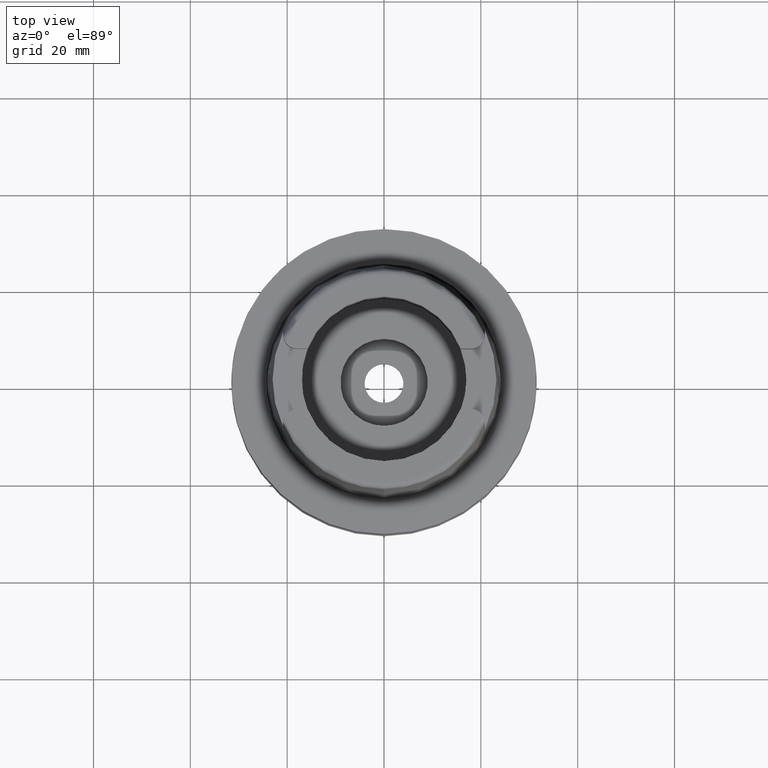
[diagram: clean part render]
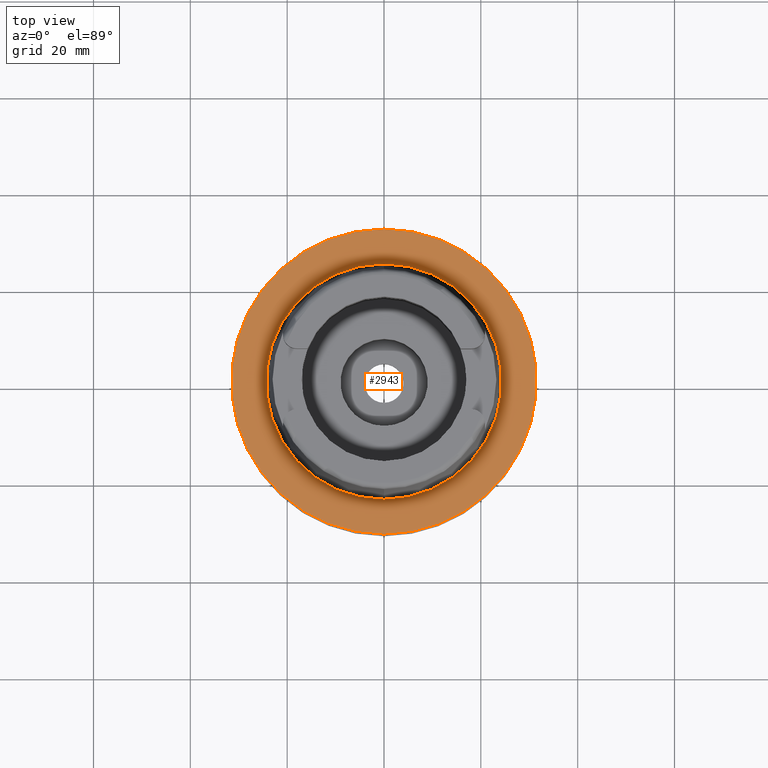
[diagram: same view with one face highlighted and labeled with its STEP entity id]
A machine part, top view. The second image highlights one B-rep face of the part: STEP entity #2943.
In plain terms, the highlighted planar face has unit normal (0, 0, 1).
Its self-contained STEP definition (entity closure, byte-faithful):
#618=CARTESIAN_POINT('',(0.E0,0.E0,-4.263256414561E-14));
#619=DIRECTION('',(0.E0,0.E0,-1.E0));
#620=DIRECTION('',(0.E0,-1.E0,0.E0));
#621=AXIS2_PLACEMENT_3D('',#618,#619,#620);
#626=CARTESIAN_POINT('',(0.E0,0.E0,-4.263256414561E-14));
#627=DIRECTION('',(0.E0,0.E0,-1.E0));
#628=DIRECTION('',(0.E0,1.E0,0.E0));
#629=AXIS2_PLACEMENT_3D('',#626,#627,#628);
#634=CARTESIAN_POINT('',(0.E0,0.E0,-1.705302565824E-12));
#635=DIRECTION('',(0.E0,0.E0,1.E0));
#636=DIRECTION('',(0.E0,-1.E0,0.E0));
#637=AXIS2_PLACEMENT_3D('',#634,#635,#636);
#642=CARTESIAN_POINT('',(0.E0,0.E0,-1.705302565824E-12));
#643=DIRECTION('',(0.E0,0.E0,1.E0));
#644=DIRECTION('',(0.E0,1.E0,0.E0));
#645=AXIS2_PLACEMENT_3D('',#642,#643,#644);
#2295=CARTESIAN_POINT('',(0.E0,-2.431503482329E1,-9.485745522397E-13));
#2296=VERTEX_POINT('',#2295);
#2297=CARTESIAN_POINT('',(0.E0,2.431503482329E1,-1.705302565824E-12));
#2298=VERTEX_POINT('',#2297);
#2557=CARTESIAN_POINT('',(0.E0,3.15E1,1.894780628694E-14));
#2558=VERTEX_POINT('',#2557);
#2559=CARTESIAN_POINT('',(0.E0,-3.15E1,-4.263256414561E-14));
#2560=VERTEX_POINT('',#2559);
#2928=CARTESIAN_POINT('',(0.E0,0.E0,0.E0));
#2929=DIRECTION('',(0.E0,0.E0,1.E0));
#2930=DIRECTION('',(0.E0,1.E0,0.E0));
#2931=AXIS2_PLACEMENT_3D('',#2928,#2929,#2930);
#2932=PLANE('',#2931);
#2934=ORIENTED_EDGE('',*,*,#2933,.T.);
#2936=ORIENTED_EDGE('',*,*,#2935,.T.);
#2937=EDGE_LOOP('',(#2934,#2936));
#2938=FACE_OUTER_BOUND('',#2937,.F.);
#2939=ORIENTED_EDGE('',*,*,#2886,.T.);
#2940=ORIENTED_EDGE('',*,*,#2679,.T.);
#2941=EDGE_LOOP('',(#2939,#2940));
#2942=FACE_BOUND('',#2941,.F.);
#622=CIRCLE('',#621,3.15E1);
#630=CIRCLE('',#629,3.15E1);
#638=CIRCLE('',#637,2.431503482329E1);
#646=CIRCLE('',#645,2.431503482329E1);
#2679=EDGE_CURVE('',#2298,#2296,#646,.T.);
#2886=EDGE_CURVE('',#2296,#2298,#638,.T.);
#2933=EDGE_CURVE('',#2560,#2558,#622,.T.);
#2935=EDGE_CURVE('',#2558,#2560,#630,.T.);
#2943=ADVANCED_FACE('',(#2938,#2942),#2932,.T.);